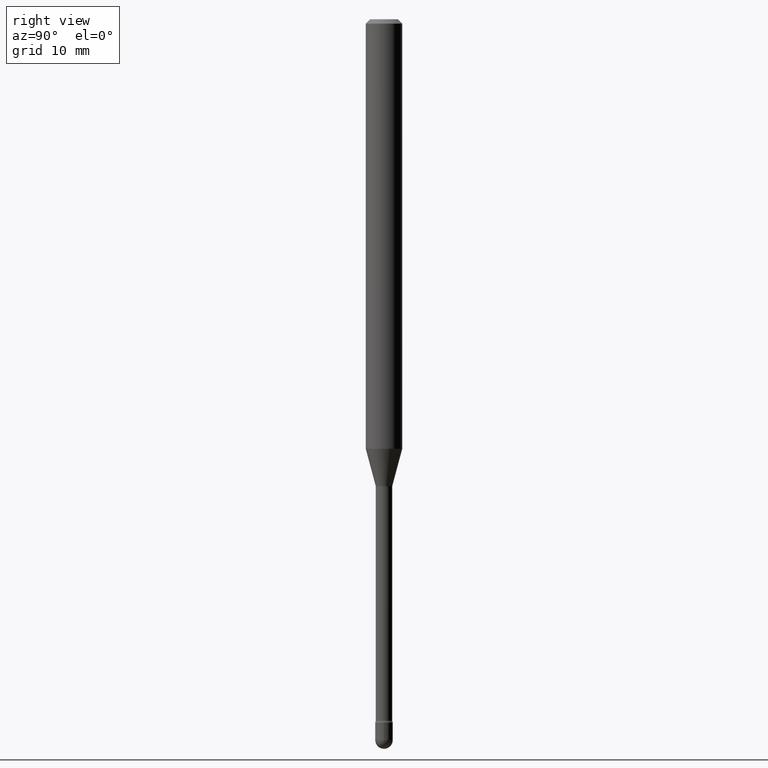
[diagram: clean part render]
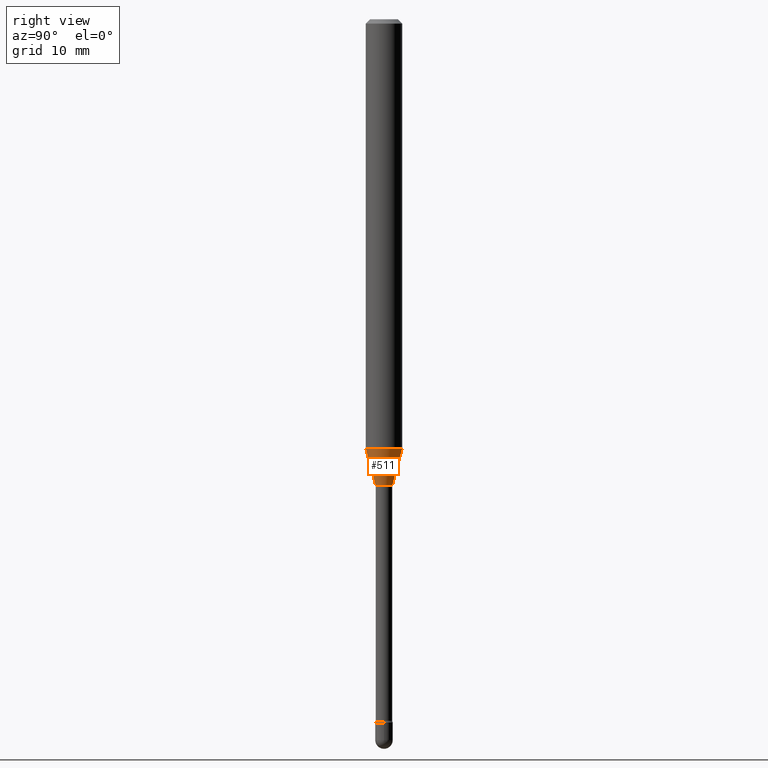
[diagram: same view with one face highlighted and labeled with its STEP entity id]
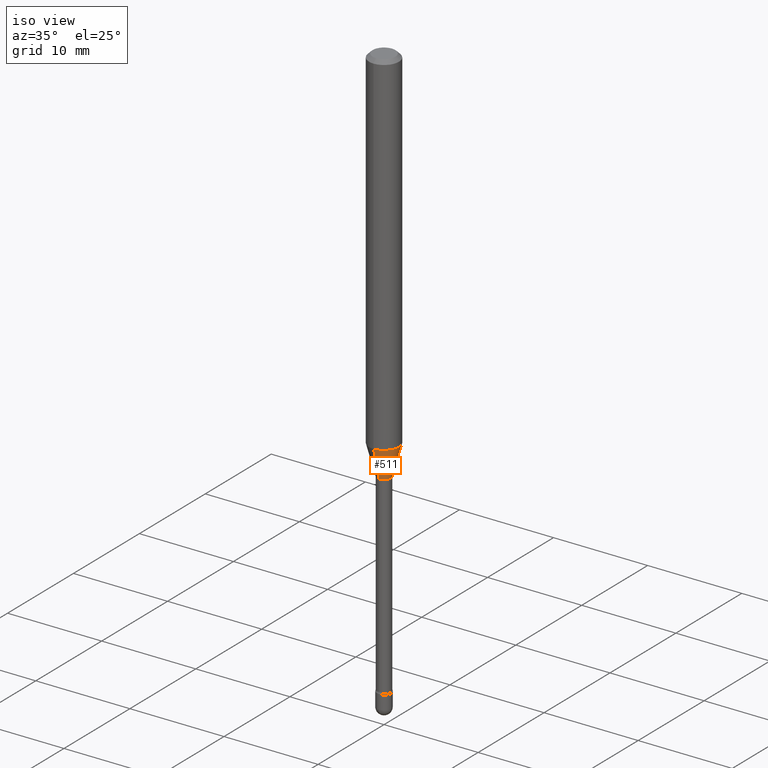
[diagram: same view with one face highlighted and labeled with its STEP entity id]
A machine part, right view. The second image highlights one B-rep face of the part: STEP entity #511.
A second angle (iso view) of the same face is appended — the face is thin or edge-on in the first view.
In plain terms, the highlighted conical surface has half-angle 15 deg.
Its self-contained STEP definition (entity closure, byte-faithful):
#9 = EDGE_CURVE ( 'NONE', #359, #211, #560, .T. ) ;
#37 = VERTEX_POINT ( 'NONE', #69 ) ;
#41 = CIRCLE ( 'NONE', #439, 0.06250000000000000000 ) ;
#43 = LINE ( 'NONE', #397, #479 ) ;
#61 = CARTESIAN_POINT ( 'NONE',  ( 4.440892098500983121E-16, 0.06249999999999484440, -1.471990657300388250 ) ) ;
#69 = CARTESIAN_POINT ( 'NONE',  ( -4.364351673553558748E-16, -0.06250000000000517641, -1.471990657300387584 ) ) ;
#72 = EDGE_CURVE ( 'NONE', #509, #359, #268, .T. ) ;
#96 = AXIS2_PLACEMENT_3D ( 'NONE', #529, #104, #324 ) ;
#104 = DIRECTION ( 'NONE',  ( -2.445430871415166747E-29, 3.491535663592855480E-15, 1.000000000000000000 ) ) ;
#106 = CARTESIAN_POINT ( 'NONE',  ( 3.599651395797071591E-29, -5.139507876439793578E-15, -1.471990657300388028 ) ) ;
#114 = ORIENTED_EDGE ( 'NONE', *, *, #306, .F. ) ;
#170 = CARTESIAN_POINT ( 'NONE',  ( 3.240469674127928209E-16, 0.02871111260565840581, -1.598092501787273134 ) ) ;
#185 = CARTESIAN_POINT ( 'NONE',  ( -2.004886277601601689E-16, -0.02871111260566956355, -1.598092501787273134 ) ) ;
#199 = DIRECTION ( 'NONE',  ( -6.982962677686265133E-15, -1.000000000000000000, 0.000000000000000000 ) ) ;
#205 = EDGE_CURVE ( 'NONE', #37, #211, #41, .T. ) ;
#210 = EDGE_LOOP ( 'NONE', ( #555, #510, #384, #114 ) ) ;
#211 = VERTEX_POINT ( 'NONE', #61 ) ;
#259 = DIRECTION ( 'NONE',  ( 1.839019923739598738E-15, 0.2588190451025247363, 0.9659258262890673130 ) ) ;
#268 = CIRCLE ( 'NONE', #366, 0.02871111260566398468 ) ;
#277 = DIRECTION ( 'NONE',  ( -2.445430871415166747E-29, 3.491535663592855480E-15, 1.000000000000000000 ) ) ;
#301 = VECTOR ( 'NONE', #259, 39.37007874015748854 ) ;
#306 = EDGE_CURVE ( 'NONE', #509, #37, #43, .T. ) ;
#322 = DIRECTION ( 'NONE',  ( -6.982962677686265922E-15, -1.000000000000000000, 4.370956789862821150E-15 ) ) ;
#324 = DIRECTION ( 'NONE',  ( -6.982962677686265133E-15, -1.000000000000000000, 0.000000000000000000 ) ) ;
#350 = FACE_OUTER_BOUND ( 'NONE', #210, .T. ) ;
#359 = VERTEX_POINT ( 'NONE', #170 ) ;
#366 = AXIS2_PLACEMENT_3D ( 'NONE', #368, #551, #199 ) ;
#368 = CARTESIAN_POINT ( 'NONE',  ( 3.908024739247695571E-29, -5.579796963710593659E-15, -1.598092501787273134 ) ) ;
#384 = ORIENTED_EDGE ( 'NONE', *, *, #205, .F. ) ;
#397 = CARTESIAN_POINT ( 'NONE',  ( -2.004886277601601689E-16, -0.02871111260566956355, -1.598092501787273134 ) ) ;
#439 = AXIS2_PLACEMENT_3D ( 'NONE', #106, #277, #322 ) ;
#477 = CARTESIAN_POINT ( 'NONE',  ( 2.040047249754869106E-16, 0.02871111260565840581, -1.598092501787273134 ) ) ;
#479 = VECTOR ( 'NONE', #524, 39.37007874015748854 ) ;
#509 = VERTEX_POINT ( 'NONE', #185 ) ;
#510 = ORIENTED_EDGE ( 'NONE', *, *, #9, .T. ) ;
#511 = ADVANCED_FACE ( 'NONE', ( #350 ), #528, .T. ) ;
#524 = DIRECTION ( 'NONE',  ( -1.807323732225328562E-15, -0.2588190451025179639, 0.9659258262890690894 ) ) ;
#528 = CONICAL_SURFACE ( 'NONE', #96, 0.02871111260566398468, 0.2617993877991500740 ) ;
#529 = CARTESIAN_POINT ( 'NONE',  ( 3.908024739247695571E-29, -5.579796963710593659E-15, -1.598092501787273134 ) ) ;
#551 = DIRECTION ( 'NONE',  ( -2.445430871415166747E-29, 3.491535663592855480E-15, 1.000000000000000000 ) ) ;
#555 = ORIENTED_EDGE ( 'NONE', *, *, #72, .T. ) ;
#560 = LINE ( 'NONE', #477, #301 ) ;